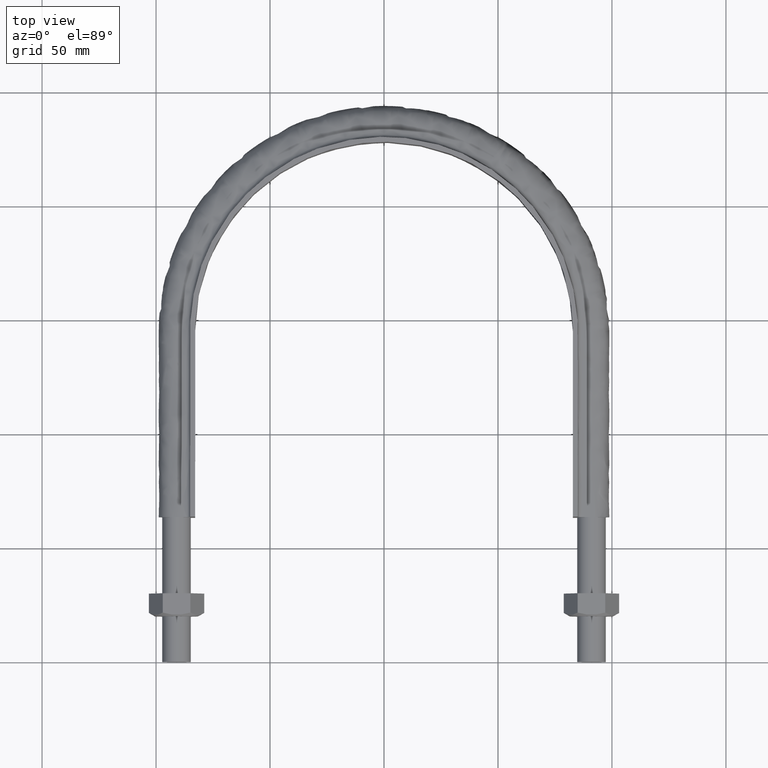
[diagram: clean part render]
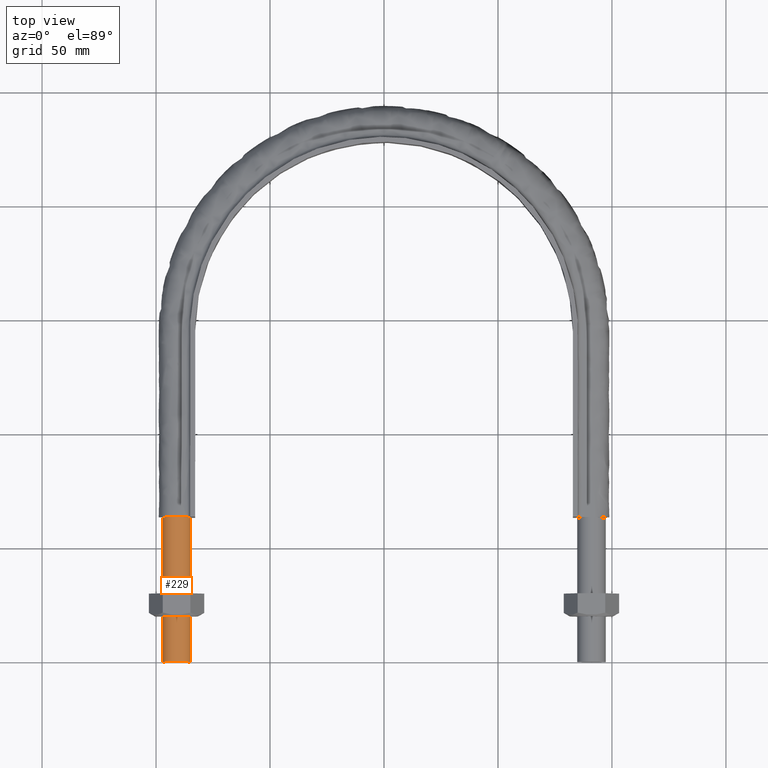
[diagram: same view with one face highlighted and labeled with its STEP entity id]
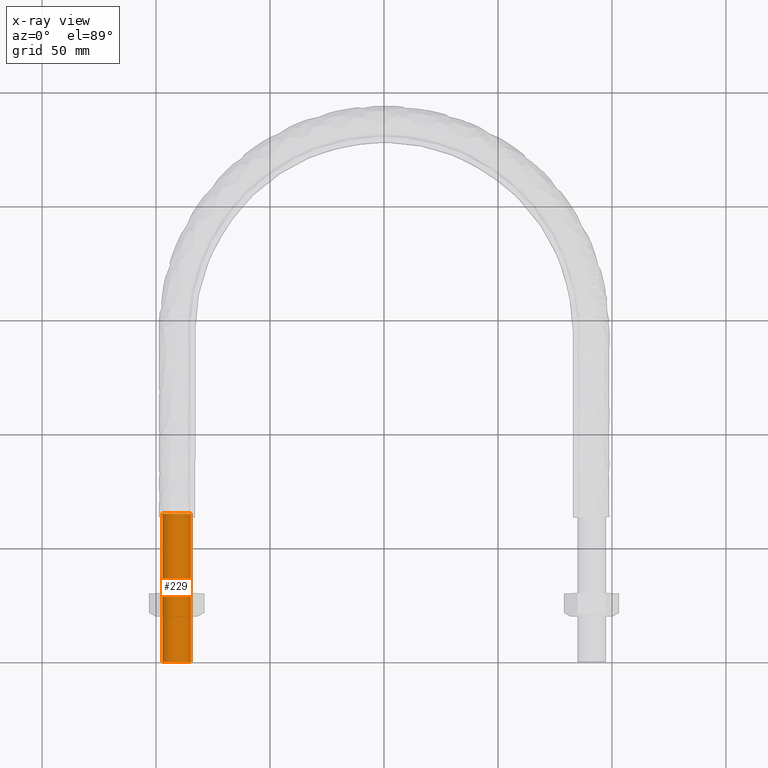
[diagram: x-ray of the same camera — body ghosted, the highlighted face saturated]
A machine part, top view. The second image highlights one B-rep face of the part: STEP entity #229.
The next image is the same camera in x-ray: the body ghosted, the highlighted face saturated — about 0% of this face is hidden behind the body in this view.
In plain terms, the highlighted cylindrical surface (bore or boss wall) has radius 6.25 mm, axis along (-0, -1, 0).
Its self-contained STEP definition (entity closure, byte-faithful):
#229 = ADVANCED_FACE( '', ( #283, #284 ), #285, .T. );
#283 = FACE_OUTER_BOUND( '', #1278, .T. );
#284 = FACE_OUTER_BOUND( '', #1279, .T. );
#285 = CYLINDRICAL_SURFACE( '', #1280, 6.25000000000001 );
#1278 = EDGE_LOOP( '', ( #1418 ) );
#1279 = EDGE_LOOP( '', ( #1419 ) );
#1280 = AXIS2_PLACEMENT_3D( '', #1420, #1421, #1422 );
#1418 = ORIENTED_EDGE( '', *, *, #1619, .F. );
#1419 = ORIENTED_EDGE( '', *, *, #1620, .T. );
#1420 = CARTESIAN_POINT( '', ( -91.0000000000000, 65.0000000000000, -1.98998532496136E-014 ) );
#1421 = DIRECTION( '', ( -2.44921270764475E-016, -1.00000000000000, 3.06151588455594E-016 ) );
#1422 = DIRECTION( '', ( 1.00000000000000, -2.44921270764475E-016, 0.000000000000000 ) );
#1619 = EDGE_CURVE( '', #1699, #1699, #1700, .T. );
#1620 = EDGE_CURVE( '', #1701, #1701, #1702, .T. );
#1699 = VERTEX_POINT( '', #1985 );
#1700 = CIRCLE( '', #1986, 6.25000000000001 );
#1701 = VERTEX_POINT( '', #1987 );
#1702 = CIRCLE( '', #1988, 6.25000000000001 );
#1985 = CARTESIAN_POINT( '', ( -84.7500000000000, 9.61315987750566E-015, 0.000000000000000 ) );
#1986 = AXIS2_PLACEMENT_3D( '', #2237, #2238, #2239 );
#1987 = CARTESIAN_POINT( '', ( -84.7500000000000, 65.0000000000000, -1.98998532496136E-014 ) );
#1988 = AXIS2_PLACEMENT_3D( '', #2240, #2241, #2242 );
#2237 = CARTESIAN_POINT( '', ( -91.0000000000000, 1.11439178197836E-014, 0.000000000000000 ) );
#2238 = DIRECTION( '', ( -2.44921270764475E-016, -1.00000000000000, 3.06151588455594E-016 ) );
#2239 = DIRECTION( '', ( 1.00000000000000, -2.44921270764475E-016, 0.000000000000000 ) );
#2240 = CARTESIAN_POINT( '', ( -91.0000000000000, 65.0000000000000, -1.98998532496136E-014 ) );
#2241 = DIRECTION( '', ( -2.44921270764475E-016, -1.00000000000000, 3.06151588455594E-016 ) );
#2242 = DIRECTION( '', ( 1.00000000000000, -2.44921270764475E-016, 0.000000000000000 ) );